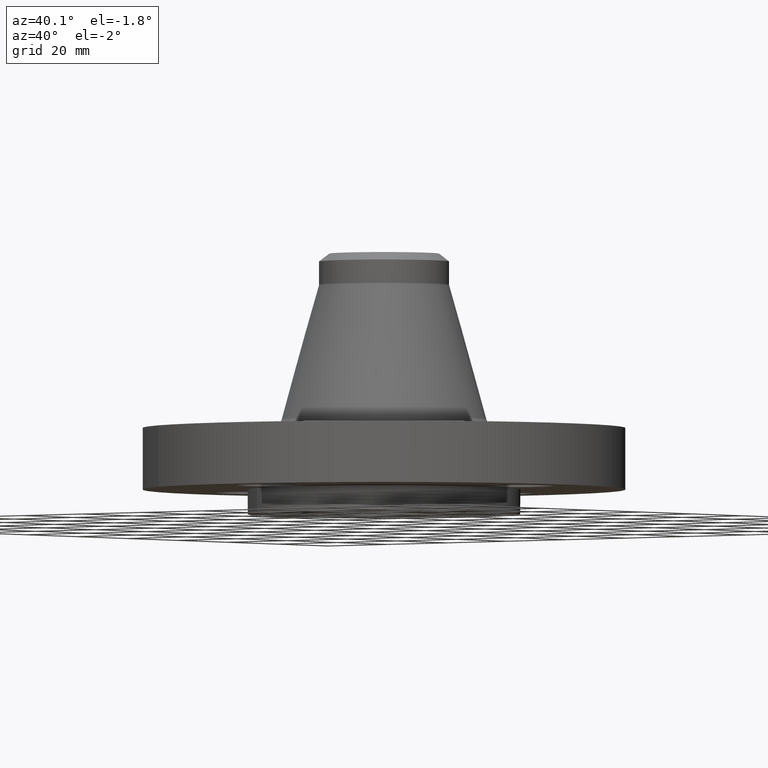
[diagram: clean part render]
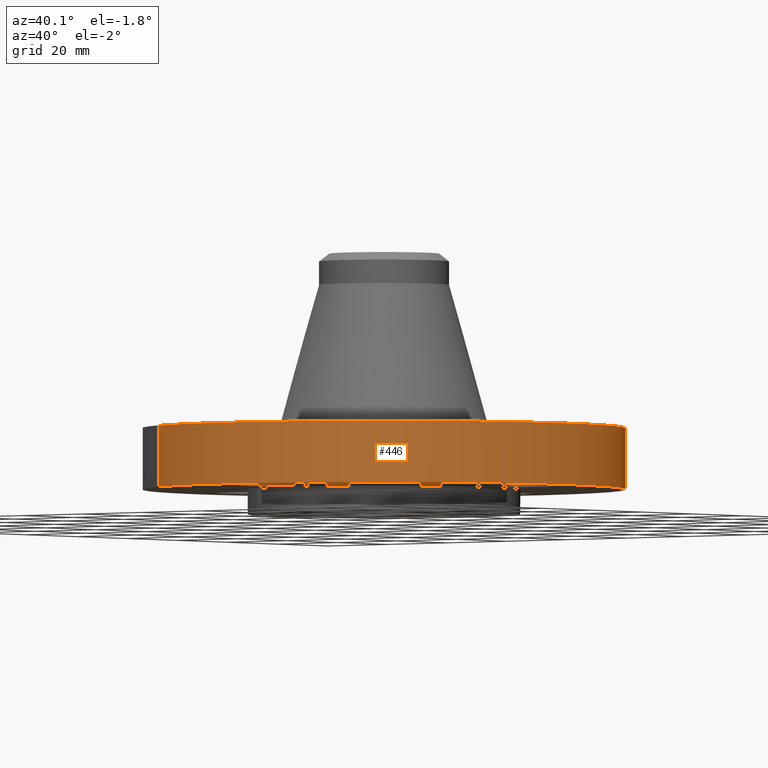
[diagram: same view with one face highlighted and labeled with its STEP entity id]
A machine part, auxiliary view. The second image highlights one B-rep face of the part: STEP entity #446.
In plain terms, the highlighted cylindrical surface (partial cylindrical patch) has radius 61.976 mm, axis along (0, 0, -1).
Its self-contained STEP definition (entity closure, byte-faithful):
#148=AXIS2_PLACEMENT_3D('Circle Axis2P3D',#146,#147,$) ;
#288=AXIS2_PLACEMENT_3D('Circle Axis2P3D',#286,#287,$) ;
#438=AXIS2_PLACEMENT_3D('Cylinder Axis2P3D',#435,#436,#437) ;
#141=CARTESIAN_POINT('Vertex',(-1.1697983142,-2.14130145102,-3.57865967831E-011)) ;
#143=CARTESIAN_POINT('Vertex',(1.1697983142,2.14130145102,-3.57865967831E-011)) ;
#146=CARTESIAN_POINT('Axis2P3D Location',(8.39223703654E-016,-1.93326369786E-011,0.)) ;
#286=CARTESIAN_POINT('Axis2P3D Location',(8.39223703654E-016,1.82136720404E-011,0.620000000002)) ;
#290=CARTESIAN_POINT('Vertex',(1.1697983142,2.14130145102,0.620000000025)) ;
#292=CARTESIAN_POINT('Vertex',(-1.1697983142,-2.14130145102,0.620000000025)) ;
#411=CARTESIAN_POINT('Line Origine',(-1.1697983142,-2.14130145102,0.309999999994)) ;
#416=CARTESIAN_POINT('Line Origine',(1.1697983142,2.14130145102,0.309999999994)) ;
#435=CARTESIAN_POINT('Axis2P3D Location',(0.,0.,1.065)) ;
#147=DIRECTION('Axis2P3D Direction',(0.,0.,-0.0393700787402)) ;
#287=DIRECTION('Axis2P3D Direction',(0.,0.,-0.0393700787402)) ;
#412=DIRECTION('Vector Direction',(0.,0.,-0.0393700787402)) ;
#417=DIRECTION('Vector Direction',(0.,0.,-0.0393700787402)) ;
#436=DIRECTION('Axis2P3D Direction',(0.,0.,-0.0393700787402)) ;
#437=DIRECTION('Axis2P3D XDirection',(0.0188750212049,0.0345504945626,0.)) ;
#413=VECTOR('Line Direction',#412,0.0393700787402) ;
#418=VECTOR('Line Direction',#417,0.0393700787402) ;
#441=ORIENTED_EDGE('',*,*,#150,.F.) ;
#442=ORIENTED_EDGE('',*,*,#420,.T.) ;
#443=ORIENTED_EDGE('',*,*,#294,.T.) ;
#444=ORIENTED_EDGE('',*,*,#415,.F.) ;
#446=ADVANCED_FACE('PartBody',(#445),#439,.T.) ;
#149=CIRCLE('generated circle',#148,2.44) ;
#289=CIRCLE('generated circle',#288,2.44) ;
#439=CYLINDRICAL_SURFACE('generated cylinder',#438,2.44000000001) ;
#150=EDGE_CURVE('',#144,#142,#149,.T.) ;
#294=EDGE_CURVE('',#291,#293,#289,.T.) ;
#415=EDGE_CURVE('',#142,#293,#414,.F.) ;
#420=EDGE_CURVE('',#144,#291,#419,.F.) ;
#440=EDGE_LOOP('',(#441,#442,#443,#444)) ;
#445=FACE_OUTER_BOUND('',#440,.T.) ;
#414=LINE('Line',#411,#413) ;
#419=LINE('Line',#416,#418) ;
#142=VERTEX_POINT('',#141) ;
#144=VERTEX_POINT('',#143) ;
#291=VERTEX_POINT('',#290) ;
#293=VERTEX_POINT('',#292) ;